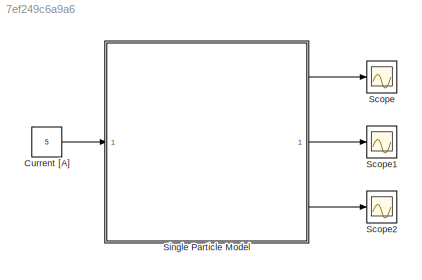
MODEL slx_7ef249c6a9a6
KIND model
CONFIG AbsTol = auto
CONFIG EnableMultiTasking = off
CONFIG FixedStep = 1
CONFIG MaxStep = auto
CONFIG MinStep = auto
CONFIG RelTol = 1e-3
CONFIG SampleTimeConstraint = Unconstrained
CONFIG SolverName = FixedStepAuto
CONFIG StartTime = 0.0
CONFIG StopTime = 1000
BLOCK [Constant] Current [A]
  SampleTime = 1
  Value = 5
BLOCK [Scope] Scope
  Floating = off
  NumInputPorts = 1
  ScopeSpecificationString = Simulink.scopes.TimeScopeBlockCfg('CurrentConfiguration', extmgr.ConfigurationSet(extmgr.Configuration('Core','General UI',true),extmgr.Configuration('Core','Source UI',true),extmgr.Configuration('Sources','WiredSimulink',true),extmgr.Configuration('Visuals','Time Domain',true,'SerializedDisplays',{struct('MinYLimReal','3.6537','MaxYLimReal','4.05424','YLabelReal','','MinYLimMag','3.6537','MaxYLim...<+1485ch>
BLOCK [Scope] Scope1
  Floating = off
  NumInputPorts = 1
  ScopeSpecificationString = Simulink.scopes.TimeScopeBlockCfg('CurrentConfiguration', extmgr.ConfigurationSet(extmgr.Configuration('Core','General UI',true),extmgr.Configuration('Core','Source UI',true),extmgr.Configuration('Sources','WiredSimulink',true,'DataLoggingVariableName','ScopeData1'),extmgr.Configuration('Visuals','Time Domain',true,'SerializedDisplays',{struct('MinYLimReal','60.77014','MaxYLimReal','104.14296','YL...<+1539ch>
BLOCK [Scope] Scope2
  Floating = off
  NumInputPorts = 1
  ScopeSpecificationString = Simulink.scopes.TimeScopeBlockCfg('CurrentConfiguration', extmgr.ConfigurationSet(extmgr.Configuration('Core','General UI',true),extmgr.Configuration('Core','Source UI',true),extmgr.Configuration('Sources','WiredSimulink',true,'DataLoggingVariableName','ScopeData1'),extmgr.Configuration('Visuals','Time Domain',true,'SerializedDisplays',{struct('MinYLimReal','3.77392','MaxYLimReal','4.20529','YLabe...<+1524ch>
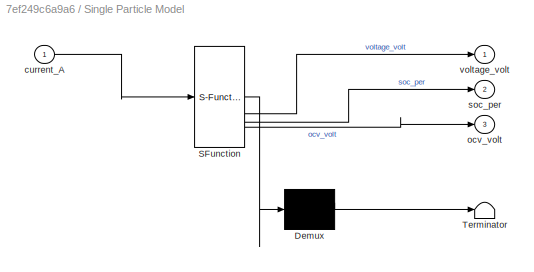
BLOCK [SubSystem] Single Particle Model
  ErrorFcn = Stateflow.Translate.translate
  PermitHierarchicalResolution = ExplicitOnly
  SFBlockType = MATLAB Function
  TreatAsAtomicUnit = on
BLOCK [Demux] Single Particle Model/ Demux 
  Outputs = 1
BLOCK [S-Function] Single Particle Model/ SFunction 
  EnableBusSupport = on
  FunctionName = sf_sfun
  Parameters = dt,init_soc_per
  PortCounts = [1 4]
  SFcnIsStateOwnerBlock = off
  SFunctionDeploymentMode = off
  Tag = Stateflow S-Function 2
BLOCK [Terminator] Single Particle Model/ Terminator 
BLOCK [Inport] Single Particle Model/current_A
BLOCK [Outport] Single Particle Model/ocv_volt
  Port = 3
BLOCK [Outport] Single Particle Model/soc_per
  Port = 2
BLOCK [Outport] Single Particle Model/voltage_volt
LINE Current [A]:1 -> Single Particle Model:1
LINE Single Particle Model:1 -> Scope:1
LINE Single Particle Model:2 -> Scope1:1
LINE Single Particle Model:3 -> Scope2:1
CHART Single Particle Model states=1 transitions=1
  STATE_LABEL 'eML_blk_kernel()'
  STATE_LABEL "SCRIPT:\nfunction [voltage_volt, soc_per, ocv_volt]  = spme(current_A, init_soc_per, dt)\n\npersistent Xn_cse Xp_cse Xn_ce Xp_ce\npersistent Ad_cse_n Bd_cse_n Cd_cse_n Dd_cse_n\npersistent Ad_cse_p Bd_cse_p Cd_cse_p Dd_cse_p\npersistent Ad_ce_n  Bd_ce_n  Cd_ce_n  Dd_ce_n\npersistent Ad_ce_p  Bd_ce_p  Cd_ce_p  Dd_ce_p\n\n% Extracting details to put stopping condition\ncoder.extrinsic('set_param');\n\n%% Fixed ...<+3608ch>"
CHART  states=0 transitions=0
